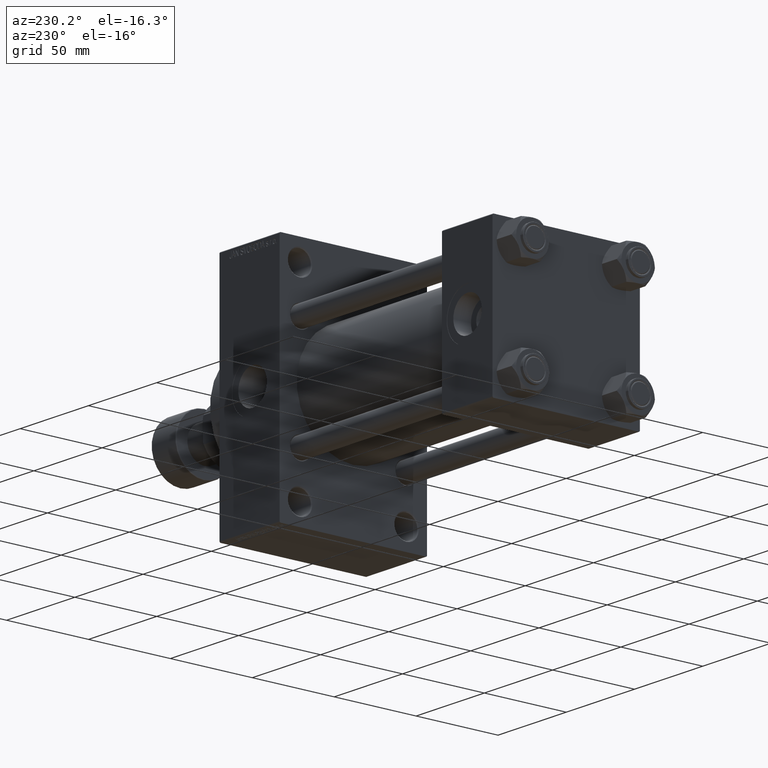
[diagram: clean part render]
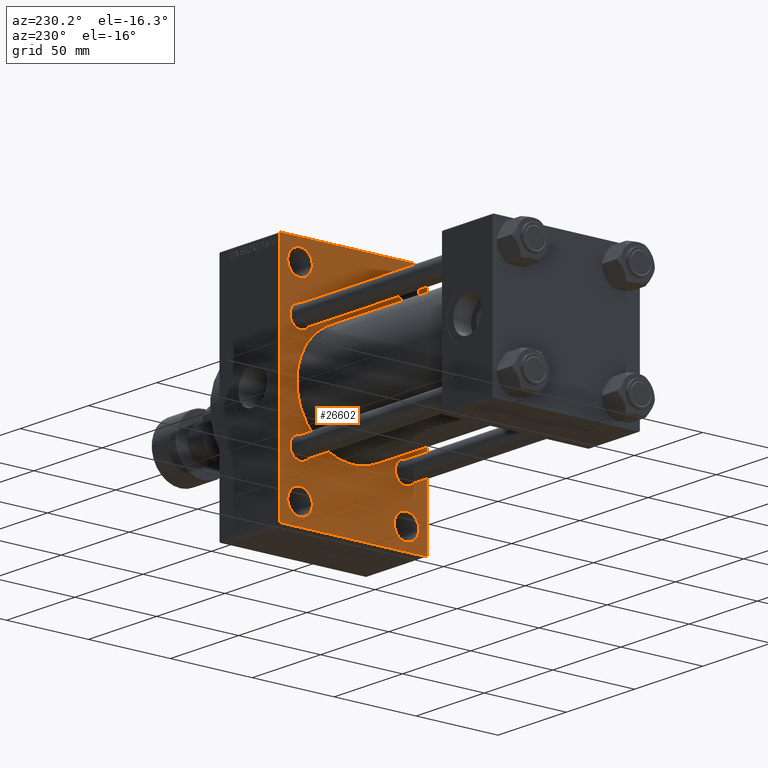
[diagram: same view with one face highlighted and labeled with its STEP entity id]
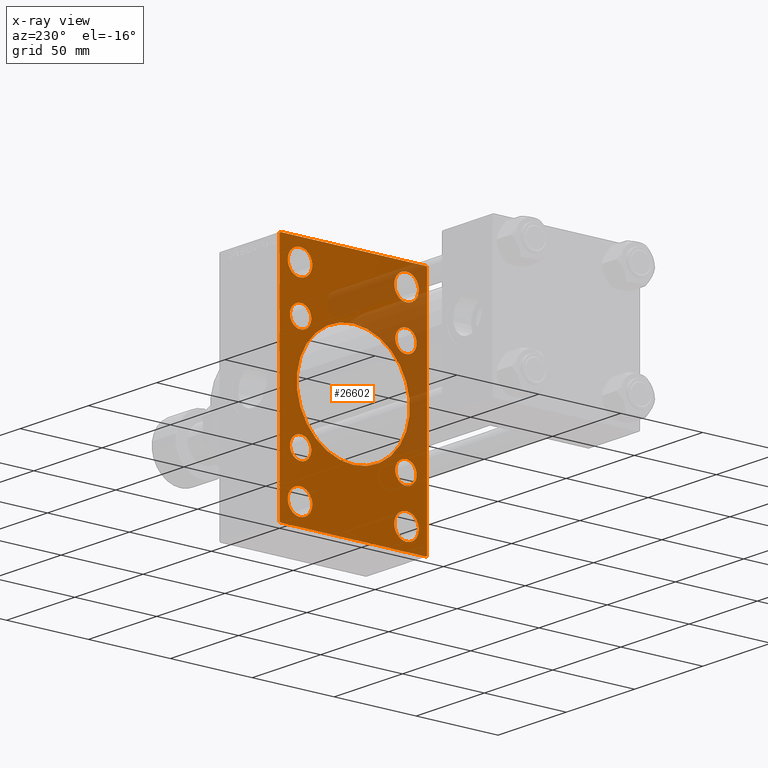
[diagram: x-ray of the same camera — body ghosted, the highlighted face saturated]
A machine part, auxiliary view. The second image highlights one B-rep face of the part: STEP entity #26602.
The next image is the same camera in x-ray: the body ghosted, the highlighted face saturated — about 26% of this face is hidden behind the body in this view.
In plain terms, the highlighted planar face has unit normal (-1, 0, 0).
Its self-contained STEP definition (entity closure, byte-faithful):
#50 = EDGE_LOOP ( 'NONE', ( #34461, #29696, #19376, #23316, #19230, #14331, #31139, #33086 ) ) ;
#165 = DIRECTION ( 'NONE',  ( 1.000000000000000000, 0.000000000000000000, 0.000000000000000000 ) ) ;
#461 = CIRCLE ( 'NONE', #23673, 6.500000000000005329 ) ;
#738 = CARTESIAN_POINT ( 'NONE',  ( 156.0000000000000000, 32.50000000000000711, -58.50000000000000000 ) ) ;
#912 = CIRCLE ( 'NONE', #9452, 6.500000000000005329 ) ;
#1046 = VERTEX_POINT ( 'NONE', #16068 ) ;
#1077 = ORIENTED_EDGE ( 'NONE', *, *, #43266, .T. ) ;
#1231 = ORIENTED_EDGE ( 'NONE', *, *, #13738, .T. ) ;
#1807 = VERTEX_POINT ( 'NONE', #34800 ) ;
#1922 = EDGE_LOOP ( 'NONE', ( #35721, #34570 ) ) ;
#2501 = CARTESIAN_POINT ( 'NONE',  ( 156.0000000000000000, 57.74999999999938893, -57.75000000000100187 ) ) ;
#2619 = DIRECTION ( 'NONE',  ( 0.000000000000000000, 0.000000000000000000, -1.000000000000000000 ) ) ;
#2763 = ORIENTED_EDGE ( 'NONE', *, *, #14793, .T. ) ;
#2822 = CARTESIAN_POINT ( 'NONE',  ( 156.0000000000000000, 57.74999999999875655, 57.75000000000196820 ) ) ;
#3404 = DIRECTION ( 'NONE',  ( 1.000000000000000000, -0.000000000000000000, 0.000000000000000000 ) ) ;
#3416 = VERTEX_POINT ( 'NONE', #33374 ) ;
#3484 = CARTESIAN_POINT ( 'NONE',  ( 156.0000000000000000, 32.50000000000000711, 51.00000000000005684 ) ) ;
#3660 = CARTESIAN_POINT ( 'NONE',  ( 156.0000000000000000, -57.75000000000149925, 57.74999999999749178 ) ) ;
#3691 = AXIS2_PLACEMENT_3D ( 'NONE', #37782, #7771, #30039 ) ;
#3904 = DIRECTION ( 'NONE',  ( 0.000000000000000000, 0.000000000000000000, 1.000000000000000000 ) ) ;
#4083 = VERTEX_POINT ( 'NONE', #40395 ) ;
#4297 = DIRECTION ( 'NONE',  ( 0.000000000000000000, 0.000000000000000000, -1.000000000000000000 ) ) ;
#4384 = ORIENTED_EDGE ( 'NONE', *, *, #44508, .T. ) ;
#4493 = EDGE_LOOP ( 'NONE', ( #31439, #38203 ) ) ;
#4662 = VERTEX_POINT ( 'NONE', #31135 ) ;
#5031 = ORIENTED_EDGE ( 'NONE', *, *, #32811, .T. ) ;
#5077 = EDGE_CURVE ( 'NONE', #37550, #17033, #22074, .T. ) ;
#5635 = VERTEX_POINT ( 'NONE', #19000 ) ;
#5900 = DIRECTION ( 'NONE',  ( 0.000000000000000000, -1.000000000000000000, -1.541976423090495387E-16 ) ) ;
#5992 = VERTEX_POINT ( 'NONE', #37808 ) ;
#6028 = CIRCLE ( 'NONE', #3691, 6.500000000000005329 ) ;
#6233 = EDGE_CURVE ( 'NONE', #5992, #17975, #461, .T. ) ;
#6354 = AXIS2_PLACEMENT_3D ( 'NONE', #13518, #46900, #28735 ) ;
#6379 = DIRECTION ( 'NONE',  ( -0.000000000000000000, -0.7071067811865574537, -0.7071067811865376918 ) ) ;
#6538 = DIRECTION ( 'NONE',  ( 1.000000000000000000, -0.000000000000000000, 0.000000000000000000 ) ) ;
#6590 = ORIENTED_EDGE ( 'NONE', *, *, #27555, .T. ) ;
#6857 = CARTESIAN_POINT ( 'NONE',  ( 156.0000000000000000, -32.50000000000000000, -58.49999999999999289 ) ) ;
#7013 = FACE_BOUND ( 'NONE', #28271, .T. ) ;
#7306 = AXIS2_PLACEMENT_3D ( 'NONE', #738, #44833, #3904 ) ;
#7456 = EDGE_CURVE ( 'NONE', #13361, #13024, #36832, .T. ) ;
#7574 = CIRCLE ( 'NONE', #30783, 34.50000000000000000 ) ;
#7771 = DIRECTION ( 'NONE',  ( 1.000000000000000000, -0.000000000000000000, 0.000000000000000000 ) ) ;
#8006 = CARTESIAN_POINT ( 'NONE',  ( 156.0000000000000000, -32.14999999999997726, -32.15000000000001279 ) ) ;
#8200 = CARTESIAN_POINT ( 'NONE',  ( 156.0000000000000000, -32.50000000000000000, 58.50000000000000711 ) ) ;
#8371 = CIRCLE ( 'NONE', #22263, 7.499999999999951150 ) ;
#8538 = AXIS2_PLACEMENT_3D ( 'NONE', #44007, #28534, #24440 ) ;
#8904 = DIRECTION ( 'NONE',  ( 0.000000000000000000, 0.000000000000000000, 1.000000000000000000 ) ) ;
#9226 = VERTEX_POINT ( 'NONE', #38774 ) ;
#9258 = VECTOR ( 'NONE', #25204, 1000.000000000000000 ) ;
#9282 = CARTESIAN_POINT ( 'NONE',  ( 156.0000000000000000, -32.14999999999997726, -32.15000000000001279 ) ) ;
#9452 = AXIS2_PLACEMENT_3D ( 'NONE', #38771, #6538, #9955 ) ;
#9566 = CARTESIAN_POINT ( 'NONE',  ( 156.0000000000000000, 32.14999999999999147, 32.15000000000000568 ) ) ;
#9584 = VERTEX_POINT ( 'NONE', #11996 ) ;
#9810 = EDGE_LOOP ( 'NONE', ( #41554, #1231 ) ) ;
#9882 = ORIENTED_EDGE ( 'NONE', *, *, #21677, .T. ) ;
#9955 = DIRECTION ( 'NONE',  ( 0.000000000000000000, 0.000000000000000000, 1.000000000000000000 ) ) ;
#10013 = VERTEX_POINT ( 'NONE', #13615 ) ;
#10424 = AXIS2_PLACEMENT_3D ( 'NONE', #8200, #42087, #34575 ) ;
#10672 = EDGE_LOOP ( 'NONE', ( #9882, #5031 ) ) ;
#10777 = DIRECTION ( 'NONE',  ( 0.000000000000000000, 0.000000000000000000, 1.000000000000000000 ) ) ;
#11002 = DIRECTION ( 'NONE',  ( 0.000000000000000000, -0.7071067811865769936, 0.7071067811865181518 ) ) ;
#11292 = VERTEX_POINT ( 'NONE', #29022 ) ;
#11457 = AXIS2_PLACEMENT_3D ( 'NONE', #37469, #165, #4297 ) ;
#11996 = CARTESIAN_POINT ( 'NONE',  ( 156.0000000000000000, 32.14999999999999147, -25.64999999999999858 ) ) ;
#12238 = EDGE_CURVE ( 'NONE', #10013, #3416, #34795, .T. ) ;
#12711 = CARTESIAN_POINT ( 'NONE',  ( 156.0000000000000000, -32.14999999999997726, 25.65000000000000213 ) ) ;
#13024 = VERTEX_POINT ( 'NONE', #47113 ) ;
#13258 = DIRECTION ( 'NONE',  ( 1.000000000000000000, -0.000000000000000000, 0.000000000000000000 ) ) ;
#13361 = VERTEX_POINT ( 'NONE', #46831 ) ;
#13460 = VECTOR ( 'NONE', #43734, 1000.000000000000000 ) ;
#13504 = VERTEX_POINT ( 'NONE', #36878 ) ;
#13518 = CARTESIAN_POINT ( 'NONE',  ( 156.0000000000000000, 0.000000000000000000, 0.000000000000000000 ) ) ;
#13615 = CARTESIAN_POINT ( 'NONE',  ( 156.0000000000000000, 32.14999999999999147, 25.65000000000000213 ) ) ;
#13738 = EDGE_CURVE ( 'NONE', #17975, #5992, #6028, .T. ) ;
#13848 = EDGE_CURVE ( 'NONE', #35774, #1046, #30284, .T. ) ;
#13855 = CARTESIAN_POINT ( 'NONE',  ( 156.0000000000000000, 32.14999999999999147, -32.15000000000000568 ) ) ;
#14028 = EDGE_CURVE ( 'NONE', #37550, #1807, #35590, .T. ) ;
#14331 = ORIENTED_EDGE ( 'NONE', *, *, #31209, .T. ) ;
#14342 = DIRECTION ( 'NONE',  ( 1.000000000000000000, -0.000000000000000000, 0.000000000000000000 ) ) ;
#14469 = EDGE_CURVE ( 'NONE', #5635, #17038, #8371, .T. ) ;
#14571 = CARTESIAN_POINT ( 'NONE',  ( 156.0000000000000000, -2.602085213965210642E-15, 0.000000000000000000 ) ) ;
#14666 = CARTESIAN_POINT ( 'NONE',  ( 156.0000000000000000, -32.50000000000000000, -51.00000000000002842 ) ) ;
#14718 = DIRECTION ( 'NONE',  ( 1.000000000000000000, 0.000000000000000000, 0.000000000000000000 ) ) ;
#14771 = ORIENTED_EDGE ( 'NONE', *, *, #36723, .T. ) ;
#14793 = EDGE_CURVE ( 'NONE', #9226, #9584, #36980, .T. ) ;
#15047 = DIRECTION ( 'NONE',  ( -0.000000000000000000, 0.7071067811865230368, 0.7071067811865721087 ) ) ;
#15158 = ORIENTED_EDGE ( 'NONE', *, *, #19513, .T. ) ;
#15322 = VECTOR ( 'NONE', #36047, 1000.000000000000000 ) ;
#15470 = AXIS2_PLACEMENT_3D ( 'NONE', #6857, #40271, #33257 ) ;
#15506 = CARTESIAN_POINT ( 'NONE',  ( 156.0000000000000000, 45.00000000000002132, 71.00000000000000000 ) ) ;
#16068 = CARTESIAN_POINT ( 'NONE',  ( 156.0000000000000000, 45.00000000000001421, -70.50000000000001421 ) ) ;
#16603 = AXIS2_PLACEMENT_3D ( 'NONE', #35388, #20385, #34909 ) ;
#17033 = VERTEX_POINT ( 'NONE', #36147 ) ;
#17038 = VERTEX_POINT ( 'NONE', #17771 ) ;
#17393 = FACE_OUTER_BOUND ( 'NONE', #50, .T. ) ;
#17771 = CARTESIAN_POINT ( 'NONE',  ( 156.0000000000000000, 32.50000000000000711, -51.00000000000004263 ) ) ;
#17975 = VERTEX_POINT ( 'NONE', #12711 ) ;
#18170 = DIRECTION ( 'NONE',  ( 1.000000000000000000, -0.000000000000000000, 0.000000000000000000 ) ) ;
#18475 = CARTESIAN_POINT ( 'NONE',  ( 156.0000000000000000, -32.50000000000000000, -58.49999999999999289 ) ) ;
#19000 = CARTESIAN_POINT ( 'NONE',  ( 156.0000000000000000, 32.50000000000000711, -65.99999999999994316 ) ) ;
#19151 = DIRECTION ( 'NONE',  ( 0.000000000000000000, 0.000000000000000000, 1.000000000000000000 ) ) ;
#19230 = ORIENTED_EDGE ( 'NONE', *, *, #41371, .F. ) ;
#19376 = ORIENTED_EDGE ( 'NONE', *, *, #14028, .F. ) ;
#19397 = DIRECTION ( 'NONE',  ( 1.000000000000000000, -0.000000000000000000, 0.000000000000000000 ) ) ;
#19444 = CIRCLE ( 'NONE', #44161, 7.499999999999951150 ) ;
#19513 = EDGE_CURVE ( 'NONE', #4083, #44568, #27101, .T. ) ;
#19942 = VERTEX_POINT ( 'NONE', #27045 ) ;
#20385 = DIRECTION ( 'NONE',  ( 1.000000000000000000, -0.000000000000000000, 0.000000000000000000 ) ) ;
#21344 = LINE ( 'NONE', #47003, #9258 ) ;
#21677 = EDGE_CURVE ( 'NONE', #32378, #13504, #19444, .T. ) ;
#22074 = LINE ( 'NONE', #3660, #26719 ) ;
#22206 = VECTOR ( 'NONE', #5900, 1000.000000000000000 ) ;
#22263 = AXIS2_PLACEMENT_3D ( 'NONE', #26475, #22374, #41257 ) ;
#22374 = DIRECTION ( 'NONE',  ( 1.000000000000000000, -0.000000000000000000, 0.000000000000000000 ) ) ;
#22499 = EDGE_CURVE ( 'NONE', #3416, #10013, #27094, .T. ) ;
#22955 = AXIS2_PLACEMENT_3D ( 'NONE', #9282, #27920, #42686 ) ;
#23070 = AXIS2_PLACEMENT_3D ( 'NONE', #28260, #13258, #8904 ) ;
#23205 = EDGE_LOOP ( 'NONE', ( #38097, #1077 ) ) ;
#23316 = ORIENTED_EDGE ( 'NONE', *, *, #5077, .T. ) ;
#23673 = AXIS2_PLACEMENT_3D ( 'NONE', #36547, #18170, #28115 ) ;
#24194 = EDGE_CURVE ( 'NONE', #26942, #1807, #29147, .T. ) ;
#24440 = DIRECTION ( 'NONE',  ( 0.000000000000000000, 0.000000000000000000, 1.000000000000000000 ) ) ;
#25040 = CARTESIAN_POINT ( 'NONE',  ( 156.0000000000000000, -57.74999999999809575, -57.75000000000289901 ) ) ;
#25204 = DIRECTION ( 'NONE',  ( 0.000000000000000000, -1.000000000000000000, -1.541976423090495633E-16 ) ) ;
#25411 = FACE_BOUND ( 'NONE', #10672, .T. ) ;
#25761 = CIRCLE ( 'NONE', #32712, 6.500000000000005329 ) ;
#26475 = CARTESIAN_POINT ( 'NONE',  ( 156.0000000000000000, 32.50000000000000711, -58.50000000000000000 ) ) ;
#26602 = ADVANCED_FACE ( 'NONE', ( #25411, #47681, #7013, #36553, #29295, #32932, #32459, #47129, #28040, #17393 ), #28279, .T. ) ;
#26719 = VECTOR ( 'NONE', #15047, 1000.000000000000000 ) ;
#26801 = EDGE_LOOP ( 'NONE', ( #38254, #15158 ) ) ;
#26886 = CARTESIAN_POINT ( 'NONE',  ( 156.0000000000000000, -32.50000000000000000, 65.99999999999995737 ) ) ;
#26942 = VERTEX_POINT ( 'NONE', #42577 ) ;
#27045 = CARTESIAN_POINT ( 'NONE',  ( 156.0000000000000000, 32.50000000000000711, 65.99999999999995737 ) ) ;
#27094 = CIRCLE ( 'NONE', #8538, 6.499999999999999112 ) ;
#27101 = CIRCLE ( 'NONE', #47162, 7.499999999999958256 ) ;
#27555 = EDGE_CURVE ( 'NONE', #9584, #9226, #912, .T. ) ;
#27920 = DIRECTION ( 'NONE',  ( 1.000000000000000000, -0.000000000000000000, 0.000000000000000000 ) ) ;
#28040 = FACE_BOUND ( 'NONE', #23205, .T. ) ;
#28115 = DIRECTION ( 'NONE',  ( 0.000000000000000000, 0.000000000000000000, 1.000000000000000000 ) ) ;
#28260 = CARTESIAN_POINT ( 'NONE',  ( 156.0000000000000000, 32.50000000000000711, 58.50000000000000711 ) ) ;
#28271 = EDGE_LOOP ( 'NONE', ( #38812, #46370 ) ) ;
#28279 = PLANE ( 'NONE',  #6354 ) ;
#28420 = VECTOR ( 'NONE', #45057, 1000.000000000000000 ) ;
#28534 = DIRECTION ( 'NONE',  ( 1.000000000000000000, -0.000000000000000000, 0.000000000000000000 ) ) ;
#28735 = DIRECTION ( 'NONE',  ( -0.000000000000000000, 0.000000000000000000, 1.000000000000000000 ) ) ;
#28872 = LINE ( 'NONE', #2501, #39972 ) ;
#29022 = CARTESIAN_POINT ( 'NONE',  ( 156.0000000000000000, 44.49999999999999289, 71.00000000000000000 ) ) ;
#29147 = LINE ( 'NONE', #25040, #44123 ) ;
#29169 = CARTESIAN_POINT ( 'NONE',  ( 156.0000000000000000, -32.50000000000000000, 58.50000000000000711 ) ) ;
#29213 = LINE ( 'NONE', #2822, #13460 ) ;
#29295 = FACE_BOUND ( 'NONE', #9810, .T. ) ;
#29696 = ORIENTED_EDGE ( 'NONE', *, *, #24194, .T. ) ;
#29873 = EDGE_CURVE ( 'NONE', #13024, #13361, #25761, .T. ) ;
#30039 = DIRECTION ( 'NONE',  ( 0.000000000000000000, 0.000000000000000000, 1.000000000000000000 ) ) ;
#30284 = LINE ( 'NONE', #15506, #28420 ) ;
#30783 = AXIS2_PLACEMENT_3D ( 'NONE', #14571, #14718, #2619 ) ;
#31135 = CARTESIAN_POINT ( 'NONE',  ( 156.0000000000000000, -2.602085213965210642E-15, 34.50000000000000000 ) ) ;
#31139 = ORIENTED_EDGE ( 'NONE', *, *, #13848, .T. ) ;
#31209 = EDGE_CURVE ( 'NONE', #11292, #35774, #29213, .T. ) ;
#31439 = ORIENTED_EDGE ( 'NONE', *, *, #22499, .T. ) ;
#32331 = AXIS2_PLACEMENT_3D ( 'NONE', #13855, #3404, #32964 ) ;
#32378 = VERTEX_POINT ( 'NONE', #26886 ) ;
#32459 = FACE_BOUND ( 'NONE', #39492, .T. ) ;
#32469 = AXIS2_PLACEMENT_3D ( 'NONE', #9566, #35457, #46355 ) ;
#32712 = AXIS2_PLACEMENT_3D ( 'NONE', #8006, #19397, #19151 ) ;
#32811 = EDGE_CURVE ( 'NONE', #13504, #32378, #39765, .T. ) ;
#32819 = CIRCLE ( 'NONE', #7306, 7.499999999999951150 ) ;
#32932 = FACE_BOUND ( 'NONE', #4493, .T. ) ;
#32964 = DIRECTION ( 'NONE',  ( 0.000000000000000000, 0.000000000000000000, 1.000000000000000000 ) ) ;
#33028 = EDGE_LOOP ( 'NONE', ( #14771, #4384 ) ) ;
#33086 = ORIENTED_EDGE ( 'NONE', *, *, #39763, .T. ) ;
#33184 = CIRCLE ( 'NONE', #15470, 7.499999999999958256 ) ;
#33229 = DIRECTION ( 'NONE',  ( 0.000000000000000000, 0.000000000000000000, 1.000000000000000000 ) ) ;
#33257 = DIRECTION ( 'NONE',  ( 0.000000000000000000, 0.000000000000000000, 1.000000000000000000 ) ) ;
#33274 = EDGE_CURVE ( 'NONE', #17038, #5635, #32819, .T. ) ;
#33374 = CARTESIAN_POINT ( 'NONE',  ( 156.0000000000000000, 32.14999999999999147, 38.65000000000001279 ) ) ;
#34085 = VERTEX_POINT ( 'NONE', #43455 ) ;
#34461 = ORIENTED_EDGE ( 'NONE', *, *, #45823, .T. ) ;
#34570 = ORIENTED_EDGE ( 'NONE', *, *, #29873, .T. ) ;
#34575 = DIRECTION ( 'NONE',  ( 0.000000000000000000, 0.000000000000000000, 1.000000000000000000 ) ) ;
#34795 = CIRCLE ( 'NONE', #32469, 6.499999999999999112 ) ;
#34800 = CARTESIAN_POINT ( 'NONE',  ( 156.0000000000000000, -44.99999999999997158, -70.49999999999995737 ) ) ;
#34870 = VERTEX_POINT ( 'NONE', #3484 ) ;
#34909 = DIRECTION ( 'NONE',  ( 0.000000000000000000, 0.000000000000000000, 1.000000000000000000 ) ) ;
#35388 = CARTESIAN_POINT ( 'NONE',  ( 156.0000000000000000, 32.50000000000000711, 58.50000000000000711 ) ) ;
#35457 = DIRECTION ( 'NONE',  ( 1.000000000000000000, -0.000000000000000000, 0.000000000000000000 ) ) ;
#35590 = LINE ( 'NONE', #39916, #15322 ) ;
#35721 = ORIENTED_EDGE ( 'NONE', *, *, #7456, .T. ) ;
#35774 = VERTEX_POINT ( 'NONE', #37335 ) ;
#35889 = VERTEX_POINT ( 'NONE', #42826 ) ;
#36047 = DIRECTION ( 'NONE',  ( 0.000000000000000000, 0.000000000000000000, -1.000000000000000000 ) ) ;
#36147 = CARTESIAN_POINT ( 'NONE',  ( 156.0000000000000000, -44.49999999999989342, 70.99999999999998579 ) ) ;
#36547 = CARTESIAN_POINT ( 'NONE',  ( 156.0000000000000000, -32.14999999999997726, 32.15000000000001279 ) ) ;
#36553 = FACE_BOUND ( 'NONE', #33028, .T. ) ;
#36723 = EDGE_CURVE ( 'NONE', #19942, #34870, #42128, .T. ) ;
#36832 = CIRCLE ( 'NONE', #22955, 6.500000000000005329 ) ;
#36878 = CARTESIAN_POINT ( 'NONE',  ( 156.0000000000000000, -32.50000000000000000, 51.00000000000005684 ) ) ;
#36980 = CIRCLE ( 'NONE', #32331, 6.500000000000005329 ) ;
#37335 = CARTESIAN_POINT ( 'NONE',  ( 156.0000000000000000, 45.00000000000002132, 70.50000000000000000 ) ) ;
#37469 = CARTESIAN_POINT ( 'NONE',  ( 156.0000000000000000, -2.602085213965210642E-15, 0.000000000000000000 ) ) ;
#37550 = VERTEX_POINT ( 'NONE', #44620 ) ;
#37782 = CARTESIAN_POINT ( 'NONE',  ( 156.0000000000000000, -32.14999999999997726, 32.15000000000001279 ) ) ;
#37808 = CARTESIAN_POINT ( 'NONE',  ( 156.0000000000000000, -32.14999999999997726, 38.65000000000002700 ) ) ;
#38097 = ORIENTED_EDGE ( 'NONE', *, *, #43154, .T. ) ;
#38203 = ORIENTED_EDGE ( 'NONE', *, *, #12238, .T. ) ;
#38254 = ORIENTED_EDGE ( 'NONE', *, *, #46933, .T. ) ;
#38771 = CARTESIAN_POINT ( 'NONE',  ( 156.0000000000000000, 32.14999999999999147, -32.15000000000000568 ) ) ;
#38774 = CARTESIAN_POINT ( 'NONE',  ( 156.0000000000000000, 32.14999999999999147, -38.65000000000001279 ) ) ;
#38812 = ORIENTED_EDGE ( 'NONE', *, *, #33274, .T. ) ;
#39492 = EDGE_LOOP ( 'NONE', ( #6590, #2763 ) ) ;
#39763 = EDGE_CURVE ( 'NONE', #1046, #34085, #28872, .T. ) ;
#39765 = CIRCLE ( 'NONE', #10424, 7.499999999999951150 ) ;
#39916 = CARTESIAN_POINT ( 'NONE',  ( 156.0000000000000000, -44.99999999999997158, 70.99999999999998579 ) ) ;
#39972 = VECTOR ( 'NONE', #6379, 999.9999999999998863 ) ;
#40271 = DIRECTION ( 'NONE',  ( 1.000000000000000000, -0.000000000000000000, 0.000000000000000000 ) ) ;
#40395 = CARTESIAN_POINT ( 'NONE',  ( 156.0000000000000000, -32.50000000000000000, -65.99999999999994316 ) ) ;
#41257 = DIRECTION ( 'NONE',  ( 0.000000000000000000, 0.000000000000000000, 1.000000000000000000 ) ) ;
#41371 = EDGE_CURVE ( 'NONE', #11292, #17033, #41989, .T. ) ;
#41554 = ORIENTED_EDGE ( 'NONE', *, *, #6233, .T. ) ;
#41989 = LINE ( 'NONE', #42228, #22206 ) ;
#42087 = DIRECTION ( 'NONE',  ( 1.000000000000000000, -0.000000000000000000, 0.000000000000000000 ) ) ;
#42128 = CIRCLE ( 'NONE', #16603, 7.499999999999951150 ) ;
#42228 = CARTESIAN_POINT ( 'NONE',  ( 156.0000000000000000, 45.00000000000002132, 71.00000000000000000 ) ) ;
#42577 = CARTESIAN_POINT ( 'NONE',  ( 156.0000000000000000, -44.49999999999985789, -71.00000000000000000 ) ) ;
#42686 = DIRECTION ( 'NONE',  ( 0.000000000000000000, 0.000000000000000000, 1.000000000000000000 ) ) ;
#42826 = CARTESIAN_POINT ( 'NONE',  ( 156.0000000000000000, 1.622946243093158675E-15, -34.50000000000000000 ) ) ;
#43154 = EDGE_CURVE ( 'NONE', #4662, #35889, #7574, .T. ) ;
#43266 = EDGE_CURVE ( 'NONE', #35889, #4662, #47001, .T. ) ;
#43455 = CARTESIAN_POINT ( 'NONE',  ( 156.0000000000000000, 44.50000000000004263, -70.99999999999998579 ) ) ;
#43734 = DIRECTION ( 'NONE',  ( 0.000000000000000000, 0.7071067811865672237, -0.7071067811865279218 ) ) ;
#43927 = CIRCLE ( 'NONE', #23070, 7.499999999999951150 ) ;
#43936 = DIRECTION ( 'NONE',  ( 1.000000000000000000, -0.000000000000000000, 0.000000000000000000 ) ) ;
#44007 = CARTESIAN_POINT ( 'NONE',  ( 156.0000000000000000, 32.14999999999999147, 32.15000000000000568 ) ) ;
#44123 = VECTOR ( 'NONE', #11002, 1000.000000000000000 ) ;
#44161 = AXIS2_PLACEMENT_3D ( 'NONE', #29169, #43936, #10777 ) ;
#44508 = EDGE_CURVE ( 'NONE', #34870, #19942, #43927, .T. ) ;
#44568 = VERTEX_POINT ( 'NONE', #14666 ) ;
#44620 = CARTESIAN_POINT ( 'NONE',  ( 156.0000000000000000, -44.99999999999997158, 70.49999999999990052 ) ) ;
#44833 = DIRECTION ( 'NONE',  ( 1.000000000000000000, -0.000000000000000000, 0.000000000000000000 ) ) ;
#45057 = DIRECTION ( 'NONE',  ( 0.000000000000000000, -4.886545002751570165E-17, -1.000000000000000000 ) ) ;
#45823 = EDGE_CURVE ( 'NONE', #34085, #26942, #21344, .T. ) ;
#46355 = DIRECTION ( 'NONE',  ( 0.000000000000000000, 0.000000000000000000, 1.000000000000000000 ) ) ;
#46370 = ORIENTED_EDGE ( 'NONE', *, *, #14469, .T. ) ;
#46831 = CARTESIAN_POINT ( 'NONE',  ( 156.0000000000000000, -32.14999999999997726, -25.65000000000000568 ) ) ;
#46900 = DIRECTION ( 'NONE',  ( -1.000000000000000000, 0.000000000000000000, -0.000000000000000000 ) ) ;
#46933 = EDGE_CURVE ( 'NONE', #44568, #4083, #33184, .T. ) ;
#47001 = CIRCLE ( 'NONE', #11457, 34.50000000000000000 ) ;
#47003 = CARTESIAN_POINT ( 'NONE',  ( 156.0000000000000000, 45.00000000000001421, -70.99999999999998579 ) ) ;
#47113 = CARTESIAN_POINT ( 'NONE',  ( 156.0000000000000000, -32.14999999999997726, -38.65000000000001990 ) ) ;
#47129 = FACE_BOUND ( 'NONE', #1922, .T. ) ;
#47162 = AXIS2_PLACEMENT_3D ( 'NONE', #18475, #14342, #33229 ) ;
#47681 = FACE_BOUND ( 'NONE', #26801, .T. ) ;